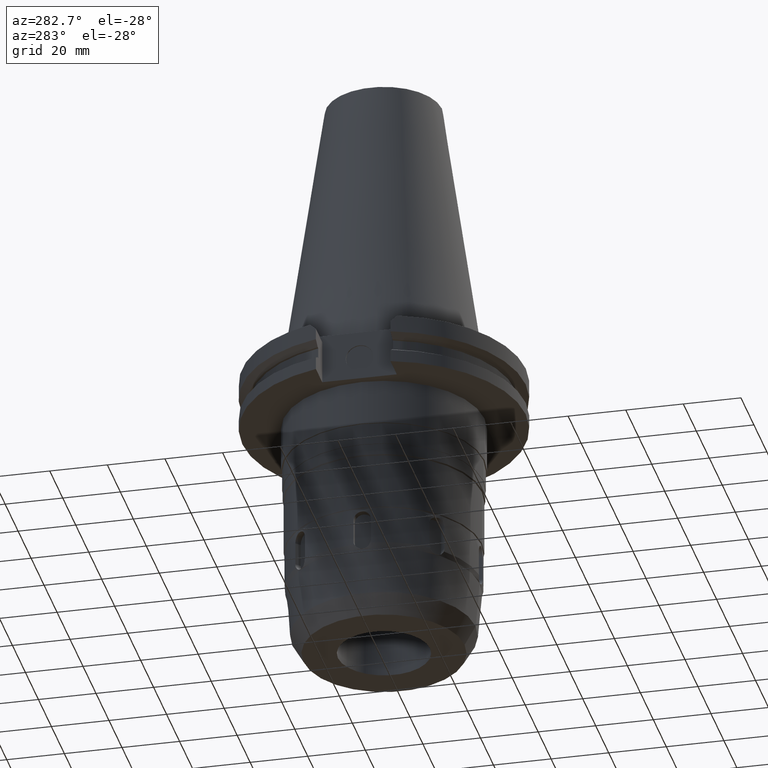
[diagram: clean part render]
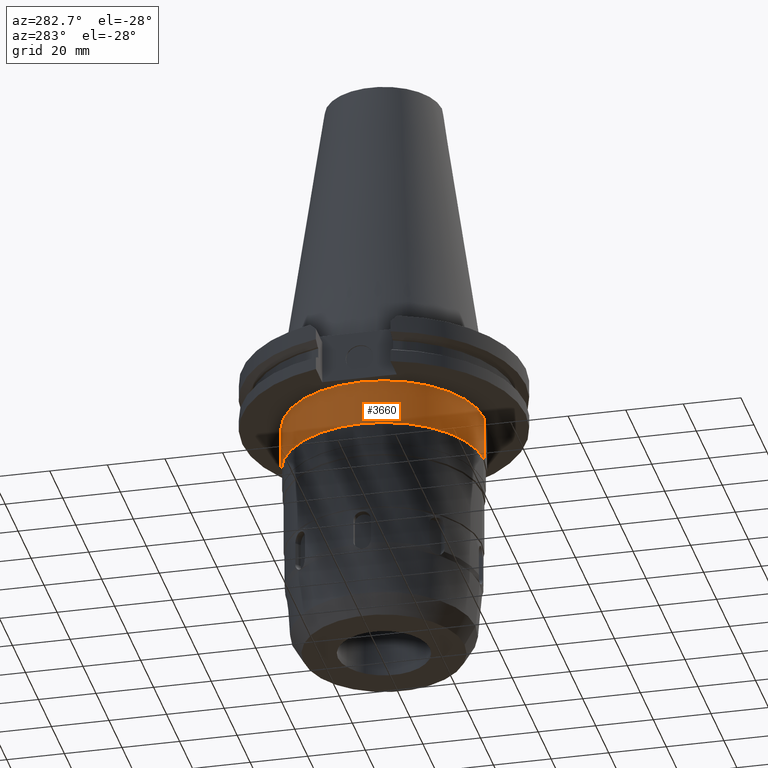
[diagram: same view with one face highlighted and labeled with its STEP entity id]
A machine part, auxiliary view. The second image highlights one B-rep face of the part: STEP entity #3660.
In plain terms, the highlighted cylindrical surface (partial cylindrical patch) has radius 34.925 mm, axis along (0, 0, 1).
Its self-contained STEP definition (entity closure, byte-faithful):
#251=CARTESIAN_POINT('',(0.E0,0.E0,-1.905E1));
#252=DIRECTION('',(0.E0,0.E0,-1.E0));
#253=DIRECTION('',(0.E0,-1.E0,0.E0));
#254=AXIS2_PLACEMENT_3D('',#251,#252,#253);
#848=DIRECTION('',(0.E0,0.E0,-1.E0));
#849=VECTOR('',#848,1.595E1);
#850=CARTESIAN_POINT('',(0.E0,-3.4925E1,-1.905E1));
#851=LINE('',#850,#849);
#855=DIRECTION('',(0.E0,0.E0,-1.E0));
#856=VECTOR('',#855,1.595E1);
#857=CARTESIAN_POINT('',(0.E0,3.4925E1,-1.905E1));
#858=LINE('',#857,#856);
#870=CARTESIAN_POINT('',(0.E0,0.E0,-3.5E1));
#871=DIRECTION('',(0.E0,0.E0,1.E0));
#872=DIRECTION('',(0.E0,1.E0,0.E0));
#873=AXIS2_PLACEMENT_3D('',#870,#871,#872);
#2699=CARTESIAN_POINT('',(0.E0,-3.4925E1,-1.905E1));
#2700=CARTESIAN_POINT('',(0.E0,3.4925E1,-1.905E1));
#2701=VERTEX_POINT('',#2699);
#2702=VERTEX_POINT('',#2700);
#2703=CARTESIAN_POINT('',(0.E0,3.4925E1,-3.5E1));
#2704=VERTEX_POINT('',#2703);
#2705=CARTESIAN_POINT('',(0.E0,-3.4925E1,-3.5E1));
#2706=VERTEX_POINT('',#2705);
#3646=CARTESIAN_POINT('',(0.E0,0.E0,-1.1533E2));
#3647=DIRECTION('',(0.E0,0.E0,1.E0));
#3648=DIRECTION('',(0.E0,1.E0,0.E0));
#3649=AXIS2_PLACEMENT_3D('',#3646,#3647,#3648);
#3650=CYLINDRICAL_SURFACE('',#3649,3.4925E1);
#3652=ORIENTED_EDGE('',*,*,#3651,.F.);
#3653=ORIENTED_EDGE('',*,*,#3197,.F.);
#3655=ORIENTED_EDGE('',*,*,#3654,.T.);
#3657=ORIENTED_EDGE('',*,*,#3656,.F.);
#3658=EDGE_LOOP('',(#3652,#3653,#3655,#3657));
#3659=FACE_OUTER_BOUND('',#3658,.F.);
#255=CIRCLE('',#254,3.4925E1);
#874=CIRCLE('',#873,3.4925E1);
#3197=EDGE_CURVE('',#2701,#2702,#255,.T.);
#3651=EDGE_CURVE('',#2702,#2704,#858,.T.);
#3654=EDGE_CURVE('',#2701,#2706,#851,.T.);
#3656=EDGE_CURVE('',#2704,#2706,#874,.T.);
#3660=ADVANCED_FACE('',(#3659),#3650,.T.);